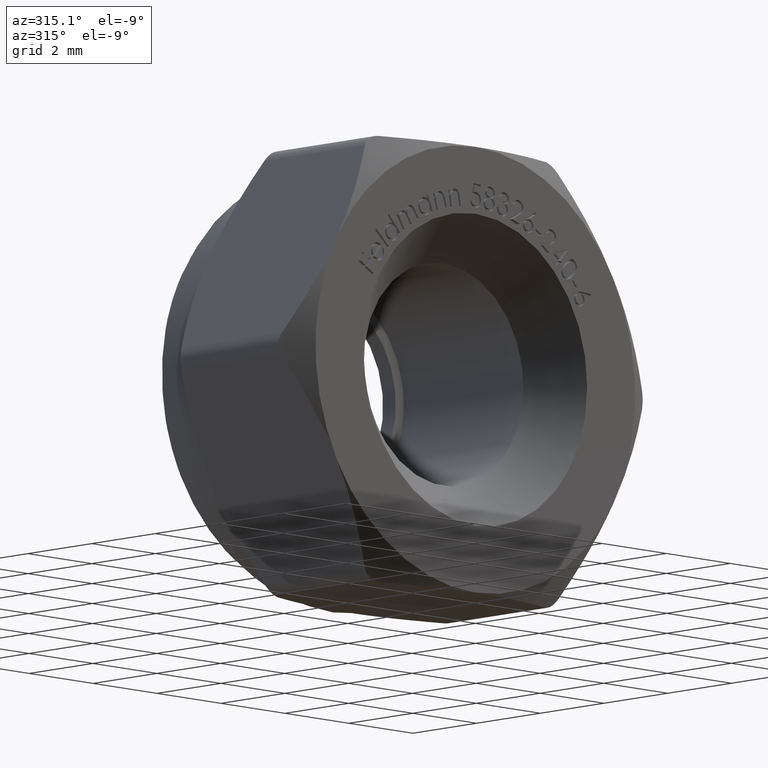
[diagram: clean part render]
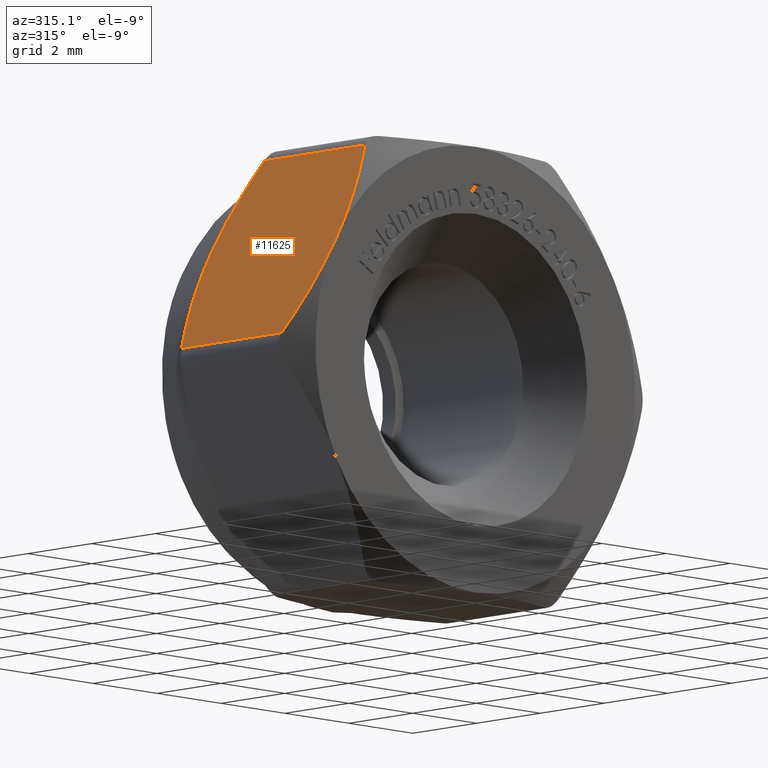
[diagram: same view with one face highlighted and labeled with its STEP entity id]
A machine part, auxiliary view. The second image highlights one B-rep face of the part: STEP entity #11625.
In plain terms, the highlighted planar face has unit normal (0.866, 0, -0.5).
Its self-contained STEP definition (entity closure, byte-faithful):
#458 = CARTESIAN_POINT ( 'NONE',  ( -4.440489780694666599, 2.000000000000001332, 2.308846089346450636 ) ) ;
#1000 = CARTESIAN_POINT ( 'NONE',  ( -4.330127018922193649, -2.000000000000000000, 2.499999999999999112 ) ) ;
#1006 = B_SPLINE_CURVE_WITH_KNOTS ( 'NONE', 3,
 ( #8393, #15557, #3413, #2127, #13295, #14419, #7085, #5984 ),
 .UNSPECIFIED., .F., .F.,
 ( 4, 2, 2, 4 ),
 ( 0.002932312231493080200, 0.003585949827794486337, 0.004239587424095892475, 0.005546862616698705617 ),
 .UNSPECIFIED. ) ;
#1053 = EDGE_CURVE ( 'NONE', #15288, #7175, #1006, .T. ) ;
#1183 = DIRECTION ( 'NONE',  ( -0.4999999999999998335, 0.000000000000000000, -0.8660254037844387076 ) ) ;
#1509 = LINE ( 'NONE', #10544, #11663 ) ;
#1533 = CARTESIAN_POINT ( 'NONE',  ( -4.551841116540099819, 1.990070288847814561, 2.115979918171496443 ) ) ;
#1658 = EDGE_CURVE ( 'NONE', #6928, #15288, #3466, .T. ) ;
#1972 = AXIS2_PLACEMENT_3D ( 'NONE', #7267, #13318, #1183 ) ;
#2127 = CARTESIAN_POINT ( 'NONE',  ( -3.888649348400000427, -1.951542283519671850, 3.264661755751584682 ) ) ;
#2163 = B_SPLINE_CURVE_WITH_KNOTS ( 'NONE', 3,
 ( #8866, #458, #1533, #3997, #2709, #7574, #5175, #2817 ),
 .UNSPECIFIED., .F., .F.,
 ( 4, 2, 2, 4 ),
 ( 0.002932312231493081067, 0.003585949827794487205, 0.004239587424095893342, 0.005546862616698706484 ),
 .UNSPECIFIED. ) ;
#2357 = ORIENTED_EDGE ( 'NONE', *, *, #8894, .T. ) ;
#2370 = PLANE ( 'NONE',  #1972 ) ;
#2709 = CARTESIAN_POINT ( 'NONE',  ( -4.880583014952740051, 1.923006844278642991, 1.546582247544157074 ) ) ;
#2751 = CARTESIAN_POINT ( 'NONE',  ( -4.774576363798093581, -2.000000000000001332, 1.730191153284235783 ) ) ;
#2817 = CARTESIAN_POINT ( 'NONE',  ( -5.629165124598850767, 1.576857443471785691, 0.2499999999999976685 ) ) ;
#2907 = CARTESIAN_POINT ( 'NONE',  ( -4.330127018922193649, 2.000000000000000000, 2.499999999999999112 ) ) ;
#3266 = DIRECTION ( 'NONE',  ( -0.000000000000000000, 1.000000000000000000, -0.000000000000000000 ) ) ;
#3413 = CARTESIAN_POINT ( 'NONE',  ( -4.108412921304284815, -1.990070288847814117, 2.884020081828500448 ) ) ;
#3421 = FACE_OUTER_BOUND ( 'NONE', #10001, .T. ) ;
#3422 = EDGE_CURVE ( 'NONE', #13364, #6928, #12305, .T. ) ;
#3466 = B_SPLINE_CURVE_WITH_KNOTS ( 'NONE', 3,
 ( #11366, #8564, #2751, #12130 ),
 .UNSPECIFIED., .F., .F.,
 ( 4, 4 ),
 ( 0.0003000040435072218420, 0.002932312231493080200 ),
 .UNSPECIFIED. ) ;
#3997 = CARTESIAN_POINT ( 'NONE',  ( -4.771604689444382430, 1.951542283519672738, 1.735338244248410433 ) ) ;
#4845 = CARTESIAN_POINT ( 'NONE',  ( -3.454435096737698441, 1.837121627419727066, 4.016742901001194355 ) ) ;
#5175 = CARTESIAN_POINT ( 'NONE',  ( -5.418280720964324892, 1.706504666854633978, 0.6152625016188600915 ) ) ;
#5984 = CARTESIAN_POINT ( 'NONE',  ( -3.031088913245534311, -1.576857443471785913, 4.749999999999999112 ) ) ;
#6025 = ORIENTED_EDGE ( 'NONE', *, *, #1658, .T. ) ;
#6059 = ORIENTED_EDGE ( 'NONE', *, *, #3422, .T. ) ;
#6073 = CARTESIAN_POINT ( 'NONE',  ( -3.885677674046291497, 2.000000000000001332, 3.269808846715760442 ) ) ;
#6928 = VERTEX_POINT ( 'NONE', #10030 ) ;
#7085 = CARTESIAN_POINT ( 'NONE',  ( -3.241973316880060185, -1.706504666854633312, 4.384737498381135801 ) ) ;
#7175 = VERTEX_POINT ( 'NONE', #10572 ) ;
#7267 = CARTESIAN_POINT ( 'NONE',  ( -5.773502691896256422, 2.000000000000000000, -1.682829190113369489E-15 ) ) ;
#7495 = DIRECTION ( 'NONE',  ( 0.000000000000000000, -1.000000000000000000, 0.000000000000000000 ) ) ;
#7574 = CARTESIAN_POINT ( 'NONE',  ( -5.205117713247124911, 1.812768551553248342, 0.9844716612792466792 ) ) ;
#7995 = EDGE_CURVE ( 'NONE', #11577, #15658, #14854, .T. ) ;
#8393 = CARTESIAN_POINT ( 'NONE',  ( -4.330127018922193649, -2.000000000000000000, 2.499999999999999112 ) ) ;
#8428 = CARTESIAN_POINT ( 'NONE',  ( -4.330127018922193649, 2.000000000000000000, 2.499999999999999112 ) ) ;
#8457 = ORIENTED_EDGE ( 'NONE', *, *, #7995, .T. ) ;
#8564 = CARTESIAN_POINT ( 'NONE',  ( -5.205818941106685749, -1.837121627419726844, 0.9832570989988034249 ) ) ;
#8866 = CARTESIAN_POINT ( 'NONE',  ( -4.330127018922193649, 2.000000000000000000, 2.499999999999999112 ) ) ;
#8894 = EDGE_CURVE ( 'NONE', #7175, #11577, #1509, .T. ) ;
#9412 = ORIENTED_EDGE ( 'NONE', *, *, #12068, .T. ) ;
#9855 = CARTESIAN_POINT ( 'NONE',  ( -5.629165124598850767, 1.576857443471785691, 0.2499999999999976685 ) ) ;
#10001 = EDGE_LOOP ( 'NONE', ( #9412, #6059, #6025, #15235, #2357, #8457 ) ) ;
#10030 = CARTESIAN_POINT ( 'NONE',  ( -5.629165124592923064, -1.576857443475430109, 0.2500000000102639564 ) ) ;
#10544 = CARTESIAN_POINT ( 'NONE',  ( -3.031088913245534311, 2.000000000000000000, 4.749999999999999112 ) ) ;
#10572 = CARTESIAN_POINT ( 'NONE',  ( -3.031088913245534311, -1.576857443471785913, 4.749999999999999112 ) ) ;
#11210 = CARTESIAN_POINT ( 'NONE',  ( -5.629165124598849879, 2.000000000000000000, 0.2499999999999985290 ) ) ;
#11366 = CARTESIAN_POINT ( 'NONE',  ( -5.629165124592923064, -1.576857443475430109, 0.2500000000102639564 ) ) ;
#11577 = VERTEX_POINT ( 'NONE', #13210 ) ;
#11625 = ADVANCED_FACE ( 'NONE', ( #3421 ), #2370, .F. ) ;
#11663 = VECTOR ( 'NONE', #3266, 1000.000000000000000 ) ;
#12068 = EDGE_CURVE ( 'NONE', #15658, #13364, #2163, .T. ) ;
#12099 = CARTESIAN_POINT ( 'NONE',  ( -3.031088913251461125, 1.576857443475429887, 4.749999999989733546 ) ) ;
#12130 = CARTESIAN_POINT ( 'NONE',  ( -4.330127018922193649, -2.000000000000000000, 2.499999999999999112 ) ) ;
#12305 = LINE ( 'NONE', #11210, #14038 ) ;
#13210 = CARTESIAN_POINT ( 'NONE',  ( -3.031088913251461125, 1.576857443475429887, 4.749999999989733546 ) ) ;
#13295 = CARTESIAN_POINT ( 'NONE',  ( -3.779671022891645471, -1.923006844278642991, 3.453417752455840262 ) ) ;
#13318 = DIRECTION ( 'NONE',  ( 0.8660254037844387076, 0.000000000000000000, -0.4999999999999998335 ) ) ;
#13364 = VERTEX_POINT ( 'NONE', #9855 ) ;
#14038 = VECTOR ( 'NONE', #7495, 1000.000000000000000 ) ;
#14419 = CARTESIAN_POINT ( 'NONE',  ( -3.455136324597259723, -1.812768551553247898, 4.015528338720748103 ) ) ;
#14854 = B_SPLINE_CURVE_WITH_KNOTS ( 'NONE', 3,
 ( #12099, #4845, #6073, #8428 ),
 .UNSPECIFIED., .F., .F.,
 ( 4, 4 ),
 ( 0.0003000040435072211915, 0.002932312231493081067 ),
 .UNSPECIFIED. ) ;
#15235 = ORIENTED_EDGE ( 'NONE', *, *, #1053, .T. ) ;
#15288 = VERTEX_POINT ( 'NONE', #1000 ) ;
#15557 = CARTESIAN_POINT ( 'NONE',  ( -4.219764257149717146, -2.000000000000001776, 2.691153910653545367 ) ) ;
#15658 = VERTEX_POINT ( 'NONE', #2907 ) ;